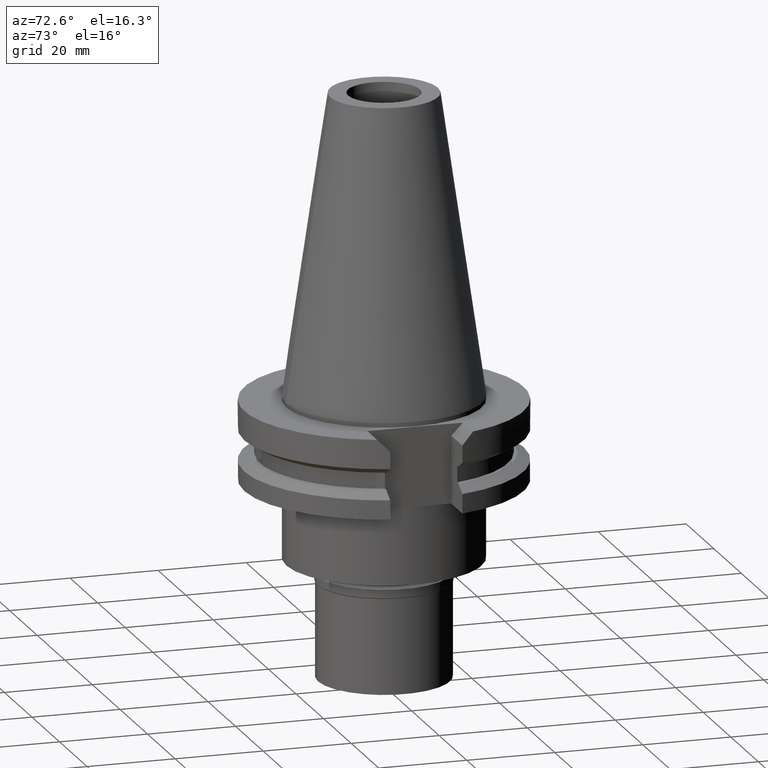
[diagram: clean part render]
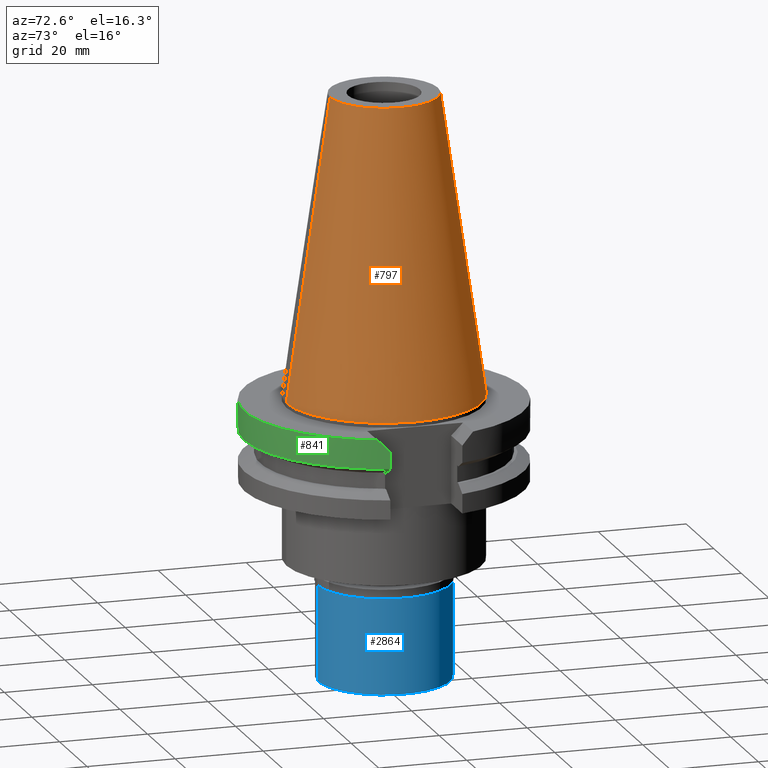
[diagram: same view with three faces highlighted in distinct colors, each labeled with its STEP entity id]
A machine part, auxiliary view with three faces highlighted in distinct colors.
Their STEP definitions:

[orange] entity #797 — the highlighted conical surface has half-angle 8.297 deg.
#37 = CARTESIAN_POINT ( 'NONE',  ( 0.0000000000000000000, 12.27186888070000137, 68.25000000000000000 ) ) ;
#69 = DIRECTION ( 'NONE',  ( 0.0000000000000000000, -1.000000000000000000, 0.0000000000000000000 ) ) ;
#89 = FACE_OUTER_BOUND ( 'NONE', #885, .T. ) ;
#169 = VERTEX_POINT ( 'NONE', #37 ) ;
#205 = DIRECTION ( 'NONE',  ( 0.0000000000000000000, 1.000000000000000000, 0.0000000000000000000 ) ) ;
#214 = EDGE_CURVE ( 'NONE', #169, #2262, #295, .T. ) ;
#224 = ORIENTED_EDGE ( 'NONE', *, *, #2067, .F. ) ;
#295 = CIRCLE ( 'NONE', #2543, 12.27186888070000137 ) ;
#375 = EDGE_CURVE ( 'NONE', #2262, #1960, #923, .T. ) ;
#377 = ORIENTED_EDGE ( 'NONE', *, *, #214, .T. ) ;
#485 = CARTESIAN_POINT ( 'NONE',  ( 0.0000000000000000000, 0.0000000000000000000, -3.694822225953000089E-13 ) ) ;
#563 = DIRECTION ( 'NONE',  ( 0.0000000000000000000, 0.0000000000000000000, -1.000000000000000000 ) ) ;
#644 = DIRECTION ( 'NONE',  ( 0.0000000000000000000, -0.1443069799456937474, -0.9895329683941577192 ) ) ;
#701 = CARTESIAN_POINT ( 'NONE',  ( 0.0000000000000000000, 0.0000000000000000000, 68.25000000000000000 ) ) ;
#778 = VECTOR ( 'NONE', #2616, 1000.000000000000114 ) ;
#780 = CARTESIAN_POINT ( 'NONE',  ( 0.0000000000000000000, -12.27186888070000137, 68.25000000000000000 ) ) ;
#797 = ADVANCED_FACE ( 'NONE', ( #89 ), #3054, .T. ) ;
#874 = ORIENTED_EDGE ( 'NONE', *, *, #2554, .F. ) ;
#885 = EDGE_LOOP ( 'NONE', ( #377, #1730, #224, #874 ) ) ;
#923 = LINE ( 'NONE', #2792, #1823 ) ;
#1227 = LINE ( 'NONE', #1915, #778 ) ;
#1409 = DIRECTION ( 'NONE',  ( 0.0000000000000000000, 1.000000000000000000, 0.0000000000000000000 ) ) ;
#1621 = CARTESIAN_POINT ( 'NONE',  ( 0.0000000000000000000, -22.22500000000000142, -2.842170943040000381E-13 ) ) ;
#1730 = ORIENTED_EDGE ( 'NONE', *, *, #375, .T. ) ;
#1823 = VECTOR ( 'NONE', #644, 1000.000000000000114 ) ;
#1908 = DIRECTION ( 'NONE',  ( 0.0000000000000000000, 0.0000000000000000000, -1.000000000000000000 ) ) ;
#1915 = CARTESIAN_POINT ( 'NONE',  ( 0.0000000000000000000, 12.27186888070000137, 68.25000000000000000 ) ) ;
#1960 = VERTEX_POINT ( 'NONE', #1621 ) ;
#1964 = VERTEX_POINT ( 'NONE', #2393 ) ;
#2067 = EDGE_CURVE ( 'NONE', #1964, #1960, #2732, .T. ) ;
#2095 = DIRECTION ( 'NONE',  ( 0.0000000000000000000, 0.0000000000000000000, -1.000000000000000000 ) ) ;
#2168 = AXIS2_PLACEMENT_3D ( 'NONE', #485, #1908, #1409 ) ;
#2262 = VERTEX_POINT ( 'NONE', #780 ) ;
#2336 = AXIS2_PLACEMENT_3D ( 'NONE', #2945, #563, #69 ) ;
#2393 = CARTESIAN_POINT ( 'NONE',  ( 0.0000000000000000000, 22.22500000000000142, -2.842170943040000381E-13 ) ) ;
#2543 = AXIS2_PLACEMENT_3D ( 'NONE', #701, #2095, #205 ) ;
#2554 = EDGE_CURVE ( 'NONE', #169, #1964, #1227, .T. ) ;
#2616 = DIRECTION ( 'NONE',  ( 0.0000000000000000000, 0.1443069799456937474, -0.9895329683941577192 ) ) ;
#2732 = CIRCLE ( 'NONE', #2168, 22.22500000000000142 ) ;
#2792 = CARTESIAN_POINT ( 'NONE',  ( 0.0000000000000000000, -12.27186888070000137, 68.25000000000000000 ) ) ;
#2945 = CARTESIAN_POINT ( 'NONE',  ( 0.0000000000000000000, 0.0000000000000000000, 34.12500000000000000 ) ) ;
#3054 = CONICAL_SURFACE ( 'NONE', #2336, 17.24843444035000317, 0.1448125860318199565 ) ;

[blue] entity #2864 — the highlighted cylindrical surface (partial cylindrical patch) has radius 15 mm, axis along (0, 0, -1).
#140 = VERTEX_POINT ( 'NONE', #501 ) ;
#186 = AXIS2_PLACEMENT_3D ( 'NONE', #2143, #961, #1903 ) ;
#243 = CARTESIAN_POINT ( 'NONE',  ( 0.0000000000000000000, -15.00000000000000000, -23.80000000000000071 ) ) ;
#311 = DIRECTION ( 'NONE',  ( 0.0000000000000000000, 0.0000000000000000000, -1.000000000000000000 ) ) ;
#334 = EDGE_CURVE ( 'NONE', #2096, #613, #1052, .T. ) ;
#431 = CARTESIAN_POINT ( 'NONE',  ( 0.0000000000000000000, -15.00000000000000000, -2.100000000000000089 ) ) ;
#501 = CARTESIAN_POINT ( 'NONE',  ( 0.0000000000000000000, 15.00000000000000000, -2.100000000000000089 ) ) ;
#523 = ORIENTED_EDGE ( 'NONE', *, *, #334, .T. ) ;
#591 = AXIS2_PLACEMENT_3D ( 'NONE', #870, #1603, #2552 ) ;
#613 = VERTEX_POINT ( 'NONE', #979 ) ;
#870 = CARTESIAN_POINT ( 'NONE',  ( 0.0000000000000000000, 0.0000000000000000000, 0.0000000000000000000 ) ) ;
#961 = DIRECTION ( 'NONE',  ( 0.0000000000000000000, 0.0000000000000000000, -1.000000000000000000 ) ) ;
#974 = VECTOR ( 'NONE', #2602, 1000.000000000000000 ) ;
#979 = CARTESIAN_POINT ( 'NONE',  ( 0.0000000000000000000, 15.00000000000000000, -23.80000000000000071 ) ) ;
#1008 = VERTEX_POINT ( 'NONE', #431 ) ;
#1052 = CIRCLE ( 'NONE', #2803, 15.00000000000000000 ) ;
#1177 = EDGE_CURVE ( 'NONE', #140, #1008, #2644, .T. ) ;
#1312 = ORIENTED_EDGE ( 'NONE', *, *, #2475, .T. ) ;
#1316 = CARTESIAN_POINT ( 'NONE',  ( 0.0000000000000000000, -15.00000000000000000, -2.100000000000000089 ) ) ;
#1476 = EDGE_LOOP ( 'NONE', ( #1619, #1312, #523, #2714 ) ) ;
#1603 = DIRECTION ( 'NONE',  ( 0.0000000000000000000, 0.0000000000000000000, -1.000000000000000000 ) ) ;
#1619 = ORIENTED_EDGE ( 'NONE', *, *, #1177, .T. ) ;
#1850 = CYLINDRICAL_SURFACE ( 'NONE', #591, 15.00000000000000000 ) ;
#1903 = DIRECTION ( 'NONE',  ( 0.0000000000000000000, 1.000000000000000000, 0.0000000000000000000 ) ) ;
#2080 = DIRECTION ( 'NONE',  ( 0.0000000000000000000, -1.000000000000000000, 0.0000000000000000000 ) ) ;
#2096 = VERTEX_POINT ( 'NONE', #243 ) ;
#2143 = CARTESIAN_POINT ( 'NONE',  ( 0.0000000000000000000, 0.0000000000000000000, -2.100000000000000089 ) ) ;
#2169 = VECTOR ( 'NONE', #311, 1000.000000000000000 ) ;
#2183 = LINE ( 'NONE', #2953, #2169 ) ;
#2221 = EDGE_CURVE ( 'NONE', #140, #613, #2183, .T. ) ;
#2279 = LINE ( 'NONE', #1316, #974 ) ;
#2404 = DIRECTION ( 'NONE',  ( 0.0000000000000000000, 0.0000000000000000000, 1.000000000000000000 ) ) ;
#2475 = EDGE_CURVE ( 'NONE', #1008, #2096, #2279, .T. ) ;
#2552 = DIRECTION ( 'NONE',  ( 0.0000000000000000000, -1.000000000000000000, 0.0000000000000000000 ) ) ;
#2602 = DIRECTION ( 'NONE',  ( 0.0000000000000000000, 0.0000000000000000000, -1.000000000000000000 ) ) ;
#2637 = CARTESIAN_POINT ( 'NONE',  ( 0.0000000000000000000, 0.0000000000000000000, -23.80000000000000071 ) ) ;
#2644 = CIRCLE ( 'NONE', #186, 15.00000000000000000 ) ;
#2703 = FACE_OUTER_BOUND ( 'NONE', #1476, .T. ) ;
#2714 = ORIENTED_EDGE ( 'NONE', *, *, #2221, .F. ) ;
#2803 = AXIS2_PLACEMENT_3D ( 'NONE', #2637, #2404, #2080 ) ;
#2864 = ADVANCED_FACE ( 'NONE', ( #2703 ), #1850, .T. ) ;
#2953 = CARTESIAN_POINT ( 'NONE',  ( 0.0000000000000000000, 15.00000000000000000, -2.100000000000000089 ) ) ;

[green] entity #841 — the highlighted cylindrical surface (partial cylindrical patch) has radius 31.75 mm, axis along (0, 0, 1).
#29 = CARTESIAN_POINT ( 'NONE',  ( 29.82399034335000110, -10.89000000000000057, -1.000000000000000000 ) ) ;
#31 = VERTEX_POINT ( 'NONE', #2071 ) ;
#70 = ORIENTED_EDGE ( 'NONE', *, *, #2838, .F. ) ;
#138 = CARTESIAN_POINT ( 'NONE',  ( 30.67550162588999640, -8.189999999999999503, -3.700000000000000178 ) ) ;
#220 = CARTESIAN_POINT ( 'NONE',  ( 30.67550162588999640, -8.189999999999999503, -3.700000000000000178 ) ) ;
#255 = CARTESIAN_POINT ( 'NONE',  ( -30.42051151758962035, -9.145060986784386614, -2.744939013214465984 ) ) ;
#293 = CARTESIAN_POINT ( 'NONE',  ( 0.0000000000000000000, 0.0000000000000000000, -59.58749999999999858 ) ) ;
#351 = LINE ( 'NONE', #2679, #2902 ) ;
#374 = DIRECTION ( 'NONE',  ( -0.9661575315241073270, -0.2579527559055020958, 0.0000000000000000000 ) ) ;
#402 = B_SPLINE_CURVE_WITH_KNOTS ( 'NONE', 3,
 ( #220, #686, #3109, #29 ),
 .UNSPECIFIED., .F., .F.,
 ( 4, 4 ),
 ( 0.0000000000000000000, 1.000000000000000000 ),
 .UNSPECIFIED. ) ;
#458 = ORIENTED_EDGE ( 'NONE', *, *, #2477, .T. ) ;
#459 = CARTESIAN_POINT ( 'NONE',  ( -30.67550162588999640, -8.189999999999999503, -3.700000000000000178 ) ) ;
#466 = DIRECTION ( 'NONE',  ( 0.0000000000000000000, 0.0000000000000000000, 1.000000000000000000 ) ) ;
#512 = VERTEX_POINT ( 'NONE', #138 ) ;
#513 = CARTESIAN_POINT ( 'NONE',  ( -29.82399034335000110, -10.89000000000000057, -0.9999999999999000799 ) ) ;
#553 = EDGE_CURVE ( 'NONE', #2203, #2008, #763, .T. ) ;
#568 = VERTEX_POINT ( 'NONE', #1655 ) ;
#686 = CARTESIAN_POINT ( 'NONE',  ( 30.42051151758968430, -9.145060986784146806, -2.744939013214799051 ) ) ;
#747 = CARTESIAN_POINT ( 'NONE',  ( -30.13251330583243615, -10.04506098678651860, -1.844939013214798695 ) ) ;
#763 = B_SPLINE_CURVE_WITH_KNOTS ( 'NONE', 3,
 ( #513, #747, #255, #1173 ),
 .UNSPECIFIED., .F., .F.,
 ( 4, 4 ),
 ( 0.0000000000000000000, 1.000000000000000000 ),
 .UNSPECIFIED. ) ;
#841 = ADVANCED_FACE ( 'NONE', ( #1482 ), #2434, .T. ) ;
#890 = AXIS2_PLACEMENT_3D ( 'NONE', #2538, #917, #1356 ) ;
#910 = ORIENTED_EDGE ( 'NONE', *, *, #1090, .T. ) ;
#917 = DIRECTION ( 'NONE',  ( 0.0000000000000000000, 0.0000000000000000000, -1.000000000000000000 ) ) ;
#980 = VERTEX_POINT ( 'NONE', #1384 ) ;
#983 = CIRCLE ( 'NONE', #890, 31.75000000000000000 ) ;
#1086 = VECTOR ( 'NONE', #1498, 1000.000000000000114 ) ;
#1090 = EDGE_CURVE ( 'NONE', #512, #980, #402, .T. ) ;
#1173 = CARTESIAN_POINT ( 'NONE',  ( -30.67550162588999640, -8.189999999999999503, -3.700000000000000178 ) ) ;
#1252 = DIRECTION ( 'NONE',  ( 0.0000000000000000000, 0.0000000000000000000, 1.000000000000000000 ) ) ;
#1356 = DIRECTION ( 'NONE',  ( 0.0000000000000000000, -1.000000000000000000, 0.0000000000000000000 ) ) ;
#1384 = CARTESIAN_POINT ( 'NONE',  ( 29.82399034335000110, -10.89000000000000057, -1.000000000000000000 ) ) ;
#1473 = CARTESIAN_POINT ( 'NONE',  ( -29.82399034335000110, -10.89000000000000057, -0.9999999999999000799 ) ) ;
#1482 = FACE_OUTER_BOUND ( 'NONE', #1875, .T. ) ;
#1498 = DIRECTION ( 'NONE',  ( -4.165399032492944904E-08, 1.560147202609979573E-07, 0.9999999999999868994 ) ) ;
#1550 = AXIS2_PLACEMENT_3D ( 'NONE', #293, #1252, #2043 ) ;
#1655 = CARTESIAN_POINT ( 'NONE',  ( -30.67550162588999640, -8.189999999999999503, -7.601333230925999551 ) ) ;
#1753 = ORIENTED_EDGE ( 'NONE', *, *, #3020, .T. ) ;
#1775 = EDGE_CURVE ( 'NONE', #512, #31, #351, .T. ) ;
#1797 = LINE ( 'NONE', #2940, #1086 ) ;
#1875 = EDGE_LOOP ( 'NONE', ( #910, #1753, #1980, #70, #458, #2274 ) ) ;
#1980 = ORIENTED_EDGE ( 'NONE', *, *, #553, .T. ) ;
#2008 = VERTEX_POINT ( 'NONE', #459 ) ;
#2043 = DIRECTION ( 'NONE',  ( 0.0000000000000000000, 1.000000000000000000, 0.0000000000000000000 ) ) ;
#2071 = CARTESIAN_POINT ( 'NONE',  ( 30.67550166025999658, -8.189999871260001285, -7.601334381353000325 ) ) ;
#2203 = VERTEX_POINT ( 'NONE', #1473 ) ;
#2274 = ORIENTED_EDGE ( 'NONE', *, *, #1775, .F. ) ;
#2434 = CYLINDRICAL_SURFACE ( 'NONE', #1550, 31.75000000000000000 ) ;
#2447 = DIRECTION ( 'NONE',  ( 8.810451936017995822E-09, 3.299894262203999064E-08, -0.9999999999999994449 ) ) ;
#2477 = EDGE_CURVE ( 'NONE', #568, #31, #2737, .T. ) ;
#2517 = CARTESIAN_POINT ( 'NONE',  ( 0.0000000000000000000, 0.0000000000000000000, -7.601333230925999551 ) ) ;
#2538 = CARTESIAN_POINT ( 'NONE',  ( 0.0000000000000000000, 0.0000000000000000000, -0.9999999999999000799 ) ) ;
#2679 = CARTESIAN_POINT ( 'NONE',  ( 30.67550162588999640, -8.189999999999999503, -3.700000000000000178 ) ) ;
#2737 = CIRCLE ( 'NONE', #2935, 31.74999999999998579 ) ;
#2838 = EDGE_CURVE ( 'NONE', #568, #2008, #1797, .T. ) ;
#2902 = VECTOR ( 'NONE', #2447, 1000.000000000000114 ) ;
#2935 = AXIS2_PLACEMENT_3D ( 'NONE', #2517, #466, #374 ) ;
#2940 = CARTESIAN_POINT ( 'NONE',  ( -30.67550146337999806, -8.190000608665000570, -7.601327791794999733 ) ) ;
#3020 = EDGE_CURVE ( 'NONE', #980, #2203, #983, .T. ) ;
#3109 = CARTESIAN_POINT ( 'NONE',  ( 30.13251330583252141, -10.04506098678628234, -1.844939013215131762 ) ) ;